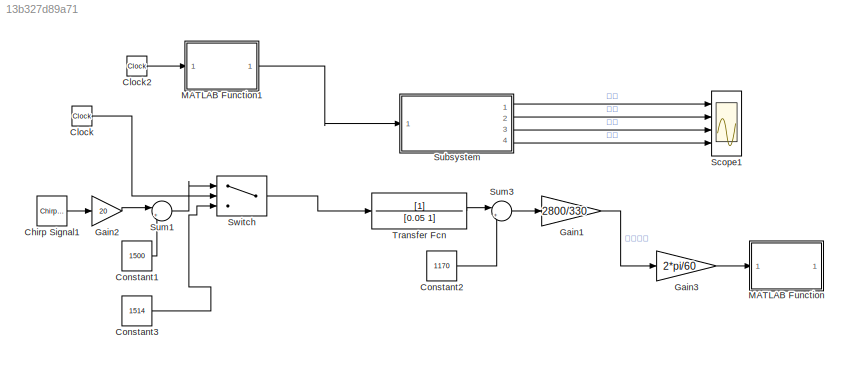
MODEL slx_13b327d89a71
KIND model
CONFIG AbsTol = auto
CONFIG EnableMultiTasking = off
CONFIG FixedStep = 0.001
CONFIG MaxStep = auto
CONFIG MinStep = auto
CONFIG RelTol = 1e-3
CONFIG SampleTimeConstraint = Unconstrained
CONFIG SolverName = FixedStepAuto
CONFIG StartFcn = MN4008_15;
CONFIG StartTime = 0.0
CONFIG StopFcn = %test1;
CONFIG StopTime = 10
BLOCK [Reference] Chirp Signal1  REF=simulink/Sources/Chirp Signal
  Ports = [0, 1]
  SourceBlock = simulink/Sources/Chirp Signal
  SourceProductBaseCode = SL
  SourceType = chirp
BLOCK [Clock] Clock
BLOCK [Clock] Clock2
BLOCK [Constant] Constant1
  Value = 1500
BLOCK [Constant] Constant2
  Value = 1170
BLOCK [Constant] Constant3
  Value = 1514
BLOCK [Gain] Gain1
  Gain = 2800/330
BLOCK [Gain] Gain2
  Gain = 20
BLOCK [Gain] Gain3
  Gain = 2*pi/60
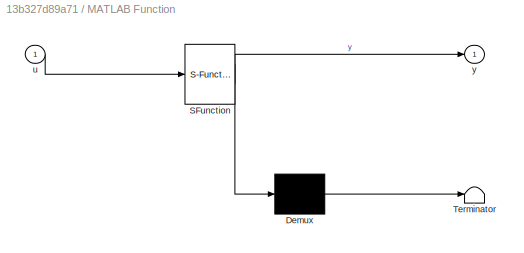
BLOCK [SubSystem] MATLAB Function
  ErrorFcn = Stateflow.Translate.translate
  PermitHierarchicalResolution = ExplicitOnly
  Ports = [1, 1]
  RequestExecContextInheritance = off
  SFBlockType = MATLAB Function
  TreatAsAtomicUnit = on
BLOCK [Demux] MATLAB Function/ Demux 
  Outputs = 1
  Ports = [1, 1]
BLOCK [S-Function] MATLAB Function/ SFunction 
  EnableBusSupport = on
  FunctionName = sf_sfun
  PortCounts = [1 2]
  Ports = [1, 2]
  SFcnIsStateOwnerBlock = off
  SFunctionDeploymentMode = off
  Tag = Stateflow S-Function 1
BLOCK [Terminator] MATLAB Function/ Terminator 
BLOCK [Inport] MATLAB Function/u
BLOCK [Outport] MATLAB Function/y
  VectorParamsAs1DForOutWhenUnconnected = off
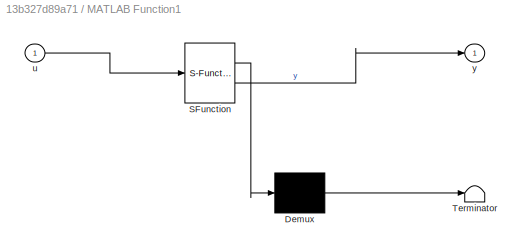
BLOCK [SubSystem] MATLAB Function1
  ErrorFcn = Stateflow.Translate.translate
  PermitHierarchicalResolution = ExplicitOnly
  Ports = [1, 1]
  RequestExecContextInheritance = off
  SFBlockType = MATLAB Function
  TreatAsAtomicUnit = on
BLOCK [Demux] MATLAB Function1/ Demux 
  Outputs = 1
  Ports = [1, 1]
BLOCK [S-Function] MATLAB Function1/ SFunction 
  EnableBusSupport = on
  FunctionName = sf_sfun
  PortCounts = [1 2]
  Ports = [1, 2]
  SFcnIsStateOwnerBlock = off
  SFunctionDeploymentMode = off
  Tag = Stateflow S-Function 4
BLOCK [Terminator] MATLAB Function1/ Terminator 
BLOCK [Inport] MATLAB Function1/u
BLOCK [Outport] MATLAB Function1/y
BLOCK [Scope] Scope1
  Floating = off
  NumInputPorts = 4
  Ports = [4]
  ScopeSpecificationString = Simulink.scopes.TimeScopeBlockCfg('CurrentConfiguration', extmgr.ConfigurationSet(extmgr.Configuration('Core','General UI',true),extmgr.Configuration('Core','Source UI',true),extmgr.Configuration('Sources','WiredSimulink',true,'DataLoggingVariableName','ScopeData1','DataLogging',true,'DataLoggingSaveFormat','StructureWithTime'),extmgr.Configuration('Visuals','Time Domain',true,'SerializedDisplays'...<+3505ch>
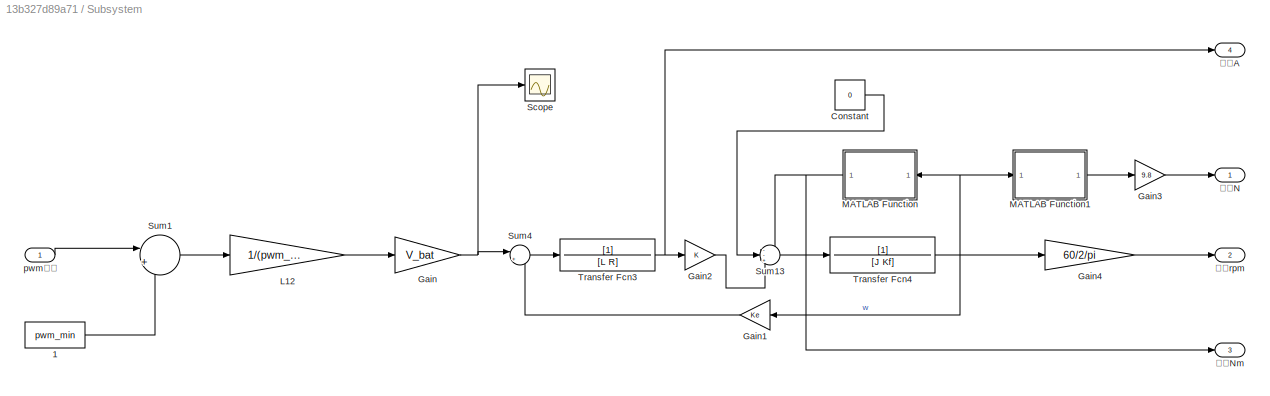
BLOCK [SubSystem] Subsystem
  Ports = [1, 4]
  RequestExecContextInheritance = off
BLOCK [Constant] Subsystem/1
  Value = pwm_min
BLOCK [Constant] Subsystem/Constant
  Value = 0
BLOCK [Gain] Subsystem/Gain
  Gain = V_bat
BLOCK [Gain] Subsystem/Gain1
  Gain = Ke
  NameLocation = top
BLOCK [Gain] Subsystem/Gain2
  Gain = K
BLOCK [Gain] Subsystem/Gain3
  Gain = 9.8
BLOCK [Gain] Subsystem/Gain4
  Gain = 60/2/pi
BLOCK [Gain] Subsystem/L12
  Gain = 1/(pwm_max - pwm_min)
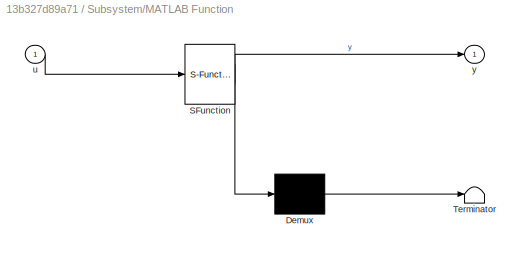
BLOCK [SubSystem] Subsystem/MATLAB Function
  ErrorFcn = Stateflow.Translate.translate
  NameLocation = top
  PermitHierarchicalResolution = ExplicitOnly
  Ports = [1, 1]
  RequestExecContextInheritance = off
  SFBlockType = MATLAB Function
  TreatAsAtomicUnit = on
BLOCK [Demux] Subsystem/MATLAB Function/ Demux 
  Outputs = 1
  Ports = [1, 1]
BLOCK [S-Function] Subsystem/MATLAB Function/ SFunction 
  EnableBusSupport = on
  FunctionName = sf_sfun
  PortCounts = [1 2]
  Ports = [1, 2]
  SFcnIsStateOwnerBlock = off
  SFunctionDeploymentMode = off
  Tag = Stateflow S-Function 2
BLOCK [Terminator] Subsystem/MATLAB Function/ Terminator 
BLOCK [Inport] Subsystem/MATLAB Function/u
BLOCK [Outport] Subsystem/MATLAB Function/y
  VectorParamsAs1DForOutWhenUnconnected = off
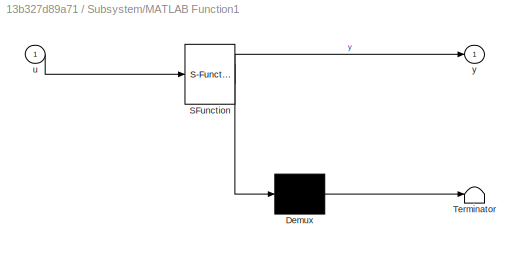
BLOCK [SubSystem] Subsystem/MATLAB Function1
  ErrorFcn = Stateflow.Translate.translate
  PermitHierarchicalResolution = ExplicitOnly
  Ports = [1, 1]
  RequestExecContextInheritance = off
  SFBlockType = MATLAB Function
  TreatAsAtomicUnit = on
BLOCK [Demux] Subsystem/MATLAB Function1/ Demux 
  Outputs = 1
  Ports = [1, 1]
BLOCK [S-Function] Subsystem/MATLAB Function1/ SFunction 
  EnableBusSupport = on
  FunctionName = sf_sfun
  PortCounts = [1 2]
  Ports = [1, 2]
  SFcnIsStateOwnerBlock = off
  SFunctionDeploymentMode = off
  Tag = Stateflow S-Function 3
BLOCK [Terminator] Subsystem/MATLAB Function1/ Terminator 
BLOCK [Inport] Subsystem/MATLAB Function1/u
BLOCK [Outport] Subsystem/MATLAB Function1/y
  VectorParamsAs1DForOutWhenUnconnected = off
BLOCK [Scope] Subsystem/Scope
  Floating = off
  NumInputPorts = 1
  Ports = [1]
  ScopeSpecificationString = Simulink.scopes.TimeScopeBlockCfg('CurrentConfiguration', extmgr.ConfigurationSet(extmgr.Configuration('Core','General UI',true),extmgr.Configuration('Core','Source UI',true),extmgr.Configuration('Sources','WiredSimulink',true,'DataLoggingVariableName','ScopeData2'),extmgr.Configuration('Visuals','Time Domain',true,'SerializedDisplays',{struct('MinYLimReal','-3.30469','MaxYLimReal','29.74219','YLa...<+1422ch>
BLOCK [Sum] Subsystem/Sum1
  Inputs = |+-
  Ports = [2, 1]
BLOCK [Sum] Subsystem/Sum13
  Inputs = --+
  Ports = [3, 1]
BLOCK [Sum] Subsystem/Sum4
  Inputs = |+-
  Ports = [2, 1]
BLOCK [TransferFcn] Subsystem/Transfer Fcn3
  Denominator = [L R]
BLOCK [TransferFcn] Subsystem/Transfer Fcn4
  Denominator = [J Kf]
BLOCK [Inport] Subsystem/pwm输入
BLOCK [Outport] Subsystem/扭矩Nm
  Port = 3
  VectorParamsAs1DForOutWhenUnconnected = off
BLOCK [Outport] Subsystem/拉力N
  VectorParamsAs1DForOutWhenUnconnected = off
BLOCK [Outport] Subsystem/电流A
  Port = 4
  VectorParamsAs1DForOutWhenUnconnected = off
BLOCK [Outport] Subsystem/转速rpm
  Port = 2
  VectorParamsAs1DForOutWhenUnconnected = off
BLOCK [Sum] Sum1
  Inputs = |++
  Ports = [2, 1]
BLOCK [Sum] Sum3
  Inputs = |+-
  Ports = [2, 1]
BLOCK [Switch] Switch
  Criteria = u2 > Threshold
  InputSameDT = off
  SaturateOnIntegerOverflow = off
  Threshold = 0.5
BLOCK [TransferFcn] Transfer Fcn
  Denominator = [0.05 1]
LINE Chirp Signal1:1 -> Gain2:1
LINE Clock2:1 -> MATLAB Function1:1
LINE Clock:1 -> Switch:2
LINE Constant1:1 -> Sum1:2
LINE Constant2:1 -> Sum3:2
LINE Constant3:1 -> Switch:3
LINE Gain1:1 -> Gain3:1
LINE Gain2:1 -> Sum1:1
LINE Gain3:1 -> MATLAB Function:1
LINE MATLAB Function1:1 -> Subsystem:1
LINE Subsystem/1:1 -> Subsystem/Sum1:2
LINE Subsystem/Constant:1 -> Subsystem/Sum13:2
LINE Subsystem/Gain1:1 -> Subsystem/Sum4:2
LINE Subsystem/Gain2:1 -> Subsystem/Sum13:3
LINE Subsystem/Gain3:1 -> Subsystem/拉力N:1
LINE Subsystem/Gain4:1 -> Subsystem/转速rpm:1
NET Subsystem/Gain:1 -> Subsystem/Scope:1, Subsystem/Sum4:1
LINE Subsystem/L12:1 -> Subsystem/Gain:1
LINE Subsystem/MATLAB Function1:1 -> Subsystem/Gain3:1
NET Subsystem/MATLAB Function:1 -> Subsystem/Sum13:1, Subsystem/扭矩Nm:1
LINE Subsystem/Sum13:1 -> Subsystem/Transfer Fcn4:1
LINE Subsystem/Sum1:1 -> Subsystem/L12:1
LINE Subsystem/Sum4:1 -> Subsystem/Transfer Fcn3:1
NET Subsystem/Transfer Fcn3:1 -> Subsystem/Gain2:1, Subsystem/电流A:1
NET Subsystem/Transfer Fcn4:1 -> Subsystem/Gain1:1, Subsystem/Gain4:1, Subsystem/MATLAB Function1:1, Subsystem/MATLAB Function:1
LINE Subsystem/pwm输入:1 -> Subsystem/Sum1:1
LINE Subsystem:1 -> Scope1:1
LINE Subsystem:2 -> Scope1:2
LINE Subsystem:3 -> Scope1:3
LINE Subsystem:4 -> Scope1:4
LINE Sum1:1 -> Switch:1
LINE Sum3:1 -> Gain1:1
LINE Switch:1 -> Transfer Fcn:1
LINE Transfer Fcn:1 -> Sum3:1
note: NET lines group one-source signal fan-out (src -> all destinations, sorted); 1:1 wires keep LINE
CHART Subsystem/MATLAB Function states=1 transitions=1
  STATE_LABEL 'eML_blk_kernel()'
  STATE_LABEL 'SCRIPT:\nfunction y = fcn(u)\n\n% y = (0.0109*u^2 + 0.6552*u)/1000;\n% y = (0.0216*u^2 + 0.0374*u)/10000;      %18寸桨力矩曲线，单位nm\ny = (0.0911*u^2 - 1.1743*u)/100000;      %tmotor15寸桨力矩曲线，单位nm'
CHART Subsystem/MATLAB Function1 states=1 transitions=1
  STATE_LABEL 'eML_blk_kernel()'
  STATE_LABEL 'SCRIPT:\nfunction y = fcn(u)\n\n% y = (0.0109*u^2 + 0.6552*u)/1000;\n% y = (0.0983*u^2 - 2.6622*u)/10000;      %18寸桨力矩曲线,单位kg\ny = (0.0528*u^2 - 4.4005*u)/10000;      %tmotor15寸桨力矩曲线，单位kg'
CHART MATLAB Function1 states=1 transitions=1
  STATE_LABEL 'eML_blk_kernel()'
  STATE_LABEL 'SCRIPT:\nfunction y = fcn(u)\ny = 1150 + 90*floor(u);\n\nend\n'
CHART MATLAB Function states=1 transitions=1
  STATE_LABEL 'eML_blk_kernel()'
  STATE_LABEL 'SCRIPT:\nfunction y = fcn(u)\n\n% y = (0.0109*u^2 + 0.6552*u)/1000;\ny = (0.0216*u^2 + 0.0374*u)/10000;      %18寸桨力矩曲线\n'
CHART  states=0 transitions=0
CHART  states=0 transitions=0
CHART  states=0 transitions=0
CHART  states=0 transitions=0
